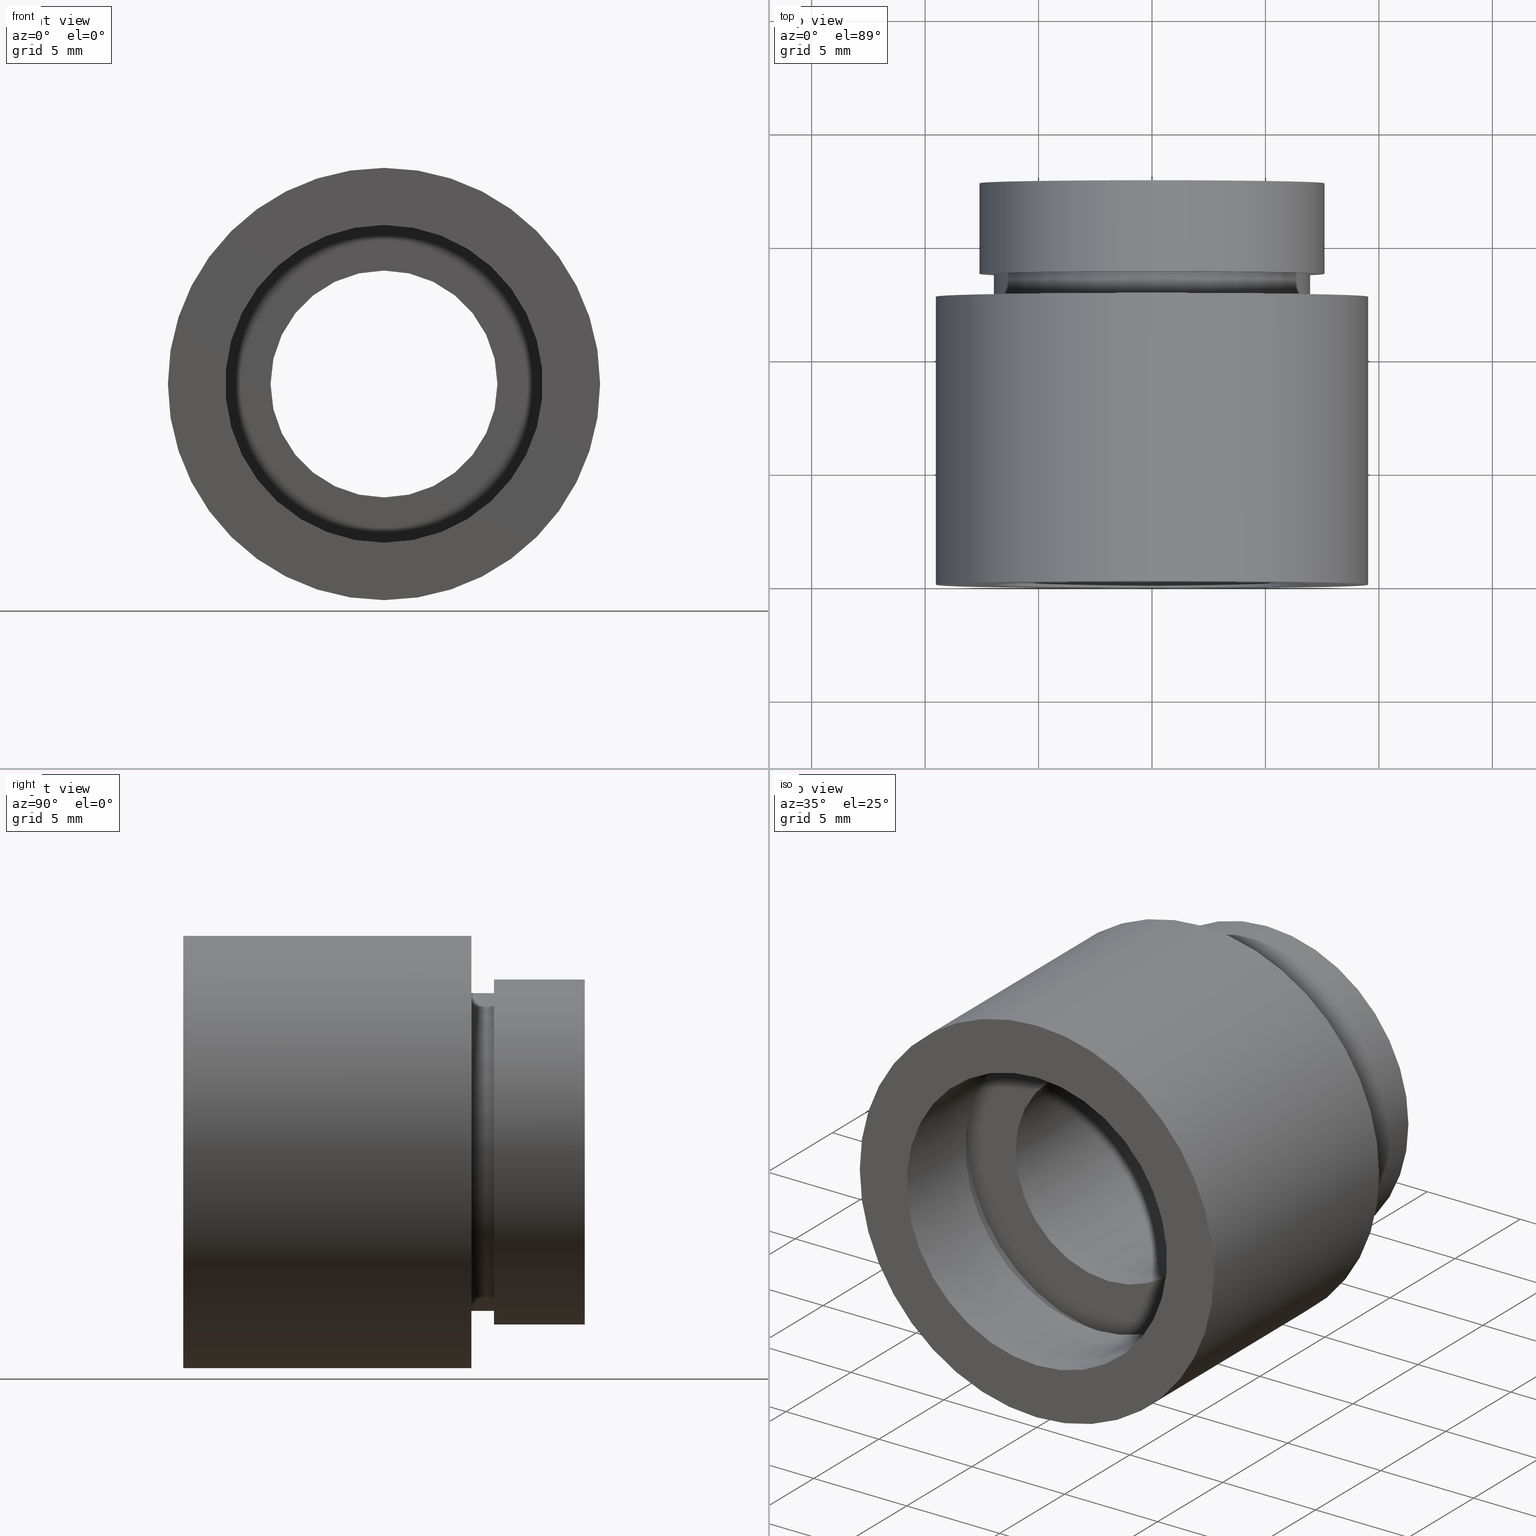
[diagram: canonical four-view strip — front | top / right | iso, engineering-drawing reading convention]
A machine part, canonical four-view strip (front | top / right | iso — engineering-drawing reading convention). The complete STEP part file that produces these views, byte-faithful:
ISO-10303-21;
HEADER;
FILE_DESCRIPTION (( 'STEP AP214' ),
    '1' );
FILE_NAME ('503092.STEP',
    '2019-09-11T07:24:43',
    ( '' ),
    ( '' ),
    'SwSTEP 2.0',
    'SolidWorks 2016',
    '' );
FILE_SCHEMA (( 'AUTOMOTIVE_DESIGN' ));
ENDSEC;

DATA;
#1 = CARTESIAN_POINT ( 'NONE',  ( 6.123233995736789000E-016, 5.499999999999976900, -5.000000000000019500 ) ) ;
#2 = FACE_OUTER_BOUND ( 'NONE', #483, .T. ) ;
#3 = ORIENTED_EDGE ( 'NONE', *, *, #262, .F. ) ;
#4 = DIRECTION ( 'NONE',  ( -0.0000000000000000000, 1.000000000000000000, -0.0000000000000000000 ) ) ;
#5 = AXIS2_PLACEMENT_3D ( 'NONE', #364, #512, #77 ) ;
#6 = PLANE ( 'NONE',  #414 ) ;
#7 = EDGE_CURVE ( 'NONE', #131, #611, #307, .T. ) ;
#8 = PRESENTATION_STYLE_ASSIGNMENT (( #311 ) ) ;
#9 = FILL_AREA_STYLE ('',( #436 ) ) ;
#10 = EDGE_LOOP ( 'NONE', ( #353, #424, #126, #561 ) ) ;
#11 =( LENGTH_UNIT ( ) NAMED_UNIT ( * ) SI_UNIT ( .MILLI., .METRE. ) );
#12 = MECHANICAL_DESIGN_GEOMETRIC_PRESENTATION_REPRESENTATION (  '', ( #594 ), #465 ) ;
#13 = UNCERTAINTY_MEASURE_WITH_UNIT (LENGTH_MEASURE( 1.000000000000000100E-005 ), #116, 'distance_accuracy_value', 'NONE');
#14 =( NAMED_UNIT ( * ) SI_UNIT ( $, .STERADIAN. ) SOLID_ANGLE_UNIT ( ) );
#15 = DIRECTION ( 'NONE',  ( -0.0000000000000000000, 1.000000000000000000, -0.0000000000000000000 ) ) ;
#16 = EDGE_CURVE ( 'NONE', #354, #180, #234, .T. ) ;
#17 = VECTOR ( 'NONE', #209, 1000.000000000000000 ) ;
#18 = ORIENTED_EDGE ( 'NONE', *, *, #261, .F. ) ;
#19 = DIRECTION ( 'NONE',  ( -0.0000000000000000000, 1.000000000000000000, -0.0000000000000000000 ) ) ;
#20 = DIRECTION ( 'NONE',  ( 0.0000000000000000000, -0.0000000000000000000, -1.000000000000000000 ) ) ;
#21 = CARTESIAN_POINT ( 'NONE',  ( 9.525000000000019900, 12.69999999999998200, 0.0000000000000000000 ) ) ;
#22 = CYLINDRICAL_SURFACE ( 'NONE', #334, 7.000000000000016900 ) ;
#23 =( GEOMETRIC_REPRESENTATION_CONTEXT ( 3 ) GLOBAL_UNCERTAINTY_ASSIGNED_CONTEXT ( ( #121 ) ) GLOBAL_UNIT_ASSIGNED_CONTEXT ( ( #44, #106, #149 ) ) REPRESENTATION_CONTEXT ( 'NONE', 'WORKASPACE' ) );
#24 = ORIENTED_EDGE ( 'NONE', *, *, #226, .T. ) ;
#25 = VERTEX_POINT ( 'NONE', #232 ) ;
#26 = DIRECTION ( 'NONE',  ( 0.0000000000000000000, 0.0000000000000000000, 1.000000000000000000 ) ) ;
#27 = EDGE_CURVE ( 'NONE', #131, #308, #257, .T. ) ;
#28 = FILL_AREA_STYLE ('',( #504 ) ) ;
#29 = CARTESIAN_POINT ( 'NONE',  ( 0.0000000000000000000, 5.499999999999976900, 0.0000000000000000000 ) ) ;
#30 = VERTEX_POINT ( 'NONE', #285 ) ;
#31 =( LENGTH_UNIT ( ) NAMED_UNIT ( * ) SI_UNIT ( .MILLI., .METRE. ) );
#32 = AXIS2_PLACEMENT_3D ( 'NONE', #84, #624, #170 ) ;
#33 = CIRCLE ( 'NONE', #156, 9.525000000000019900 ) ;
#34 = VECTOR ( 'NONE', #485, 1000.000000000000000 ) ;
#35 = DIRECTION ( 'NONE',  ( 0.0000000000000000000, 0.0000000000000000000, 1.000000000000000000 ) ) ;
#36 = EDGE_LOOP ( 'NONE', ( #127, #136, #450, #448 ) ) ;
#37 = AXIS2_PLACEMENT_3D ( 'NONE', #103, #145, #498 ) ;
#38 = ORIENTED_EDGE ( 'NONE', *, *, #7, .T. ) ;
#39 = SURFACE_SIDE_STYLE ('',( #241 ) ) ;
#40 = EDGE_LOOP ( 'NONE', ( #555, #78 ) ) ;
#41 = ORIENTED_EDGE ( 'NONE', *, *, #433, .F. ) ;
#42 = AXIS2_PLACEMENT_3D ( 'NONE', #246, #63, #20 ) ;
#43 = CARTESIAN_POINT ( 'NONE',  ( 0.0000000000000000000, 161.3761669434274500, 0.0000000000000000000 ) ) ;
#44 =( LENGTH_UNIT ( ) NAMED_UNIT ( * ) SI_UNIT ( .MILLI., .METRE. ) );
#45 = VECTOR ( 'NONE', #425, 1000.000000000000000 ) ;
#46 = CARTESIAN_POINT ( 'NONE',  ( 7.000000000000019500, -1.650046791174882700E-014, 0.0000000000000000000 ) ) ;
#47 = CYLINDRICAL_SURFACE ( 'NONE', #423, 5.000000000000019500 ) ;
#48 = VERTEX_POINT ( 'NONE', #541 ) ;
#49 = STYLED_ITEM ( 'NONE', ( #542 ), #614 ) ;
#50 = DIRECTION ( 'NONE',  ( -0.0000000000000000000, 1.000000000000000000, -0.0000000000000000000 ) ) ;
#51 = DIRECTION ( 'NONE',  ( -0.0000000000000000000, 1.000000000000000000, -0.0000000000000000000 ) ) ;
#52 = EDGE_CURVE ( 'NONE', #611, #131, #536, .T. ) ;
#53 = DIRECTION ( 'NONE',  ( -0.0000000000000000000, 1.000000000000000000, -0.0000000000000000000 ) ) ;
#54 = CIRCLE ( 'NONE', #64, 7.600000000000020100 ) ;
#55 = ORIENTED_EDGE ( 'NONE', *, *, #270, .F. ) ;
#56 = CARTESIAN_POINT ( 'NONE',  ( 0.0000000000000000000, -2.775557561562891400E-014, 0.0000000000000000000 ) ) ;
#57 = DIRECTION ( 'NONE',  ( 0.0000000000000000000, 0.0000000000000000000, 1.000000000000000000 ) ) ;
#58 = AXIS2_PLACEMENT_3D ( 'NONE', #431, #332, #229 ) ;
#59 = PRESENTATION_STYLE_ASSIGNMENT (( #474 ) ) ;
#60 = DIRECTION ( 'NONE',  ( 0.0000000000000000000, 0.0000000000000000000, 1.000000000000000000 ) ) ;
#61 = COLOUR_RGB ( '',1.000000000000000000, 1.000000000000000000, 1.000000000000000000 ) ;
#62 = ORIENTED_EDGE ( 'NONE', *, *, #588, .T. ) ;
#63 = DIRECTION ( 'NONE',  ( 0.0000000000000000000, -1.000000000000000000, 0.0000000000000000000 ) ) ;
#64 = AXIS2_PLACEMENT_3D ( 'NONE', #247, #459, #342 ) ;
#65 =( NAMED_UNIT ( * ) PLANE_ANGLE_UNIT ( ) SI_UNIT ( $, .RADIAN. ) );
#66 = DIRECTION ( 'NONE',  ( 0.0000000000000000000, 0.0000000000000000000, 1.000000000000000000 ) ) ;
#67 = SURFACE_STYLE_FILL_AREA ( #470 ) ;
#68 = AXIS2_PLACEMENT_3D ( 'NONE', #515, #318, #617 ) ;
#69 = SURFACE_STYLE_USAGE ( .BOTH. , #206 ) ;
#70 = EDGE_LOOP ( 'NONE', ( #212, #518, #110, #198 ) ) ;
#71 = UNCERTAINTY_MEASURE_WITH_UNIT (LENGTH_MEASURE( 1.000000000000000100E-005 ), #446, 'distance_accuracy_value', 'NONE');
#72 =( NAMED_UNIT ( * ) PLANE_ANGLE_UNIT ( ) SI_UNIT ( $, .RADIAN. ) );
#73 = EDGE_CURVE ( 'NONE', #399, #281, #602, .T. ) ;
#74 = FACE_OUTER_BOUND ( 'NONE', #496, .T. ) ;
#75 = FACE_OUTER_BOUND ( 'NONE', #70, .T. ) ;
#76 = ORIENTED_EDGE ( 'NONE', *, *, #16, .T. ) ;
#77 = DIRECTION ( 'NONE',  ( 0.0000000000000000000, 0.0000000000000000000, 1.000000000000000000 ) ) ;
#78 = ORIENTED_EDGE ( 'NONE', *, *, #565, .F. ) ;
#79 = PRODUCT ( '503092', '503092', '', ( #303 ) ) ;
#80 = CARTESIAN_POINT ( 'NONE',  ( 0.0000000000000000000, 161.3761669434274500, 0.0000000000000000000 ) ) ;
#81 =( GEOMETRIC_REPRESENTATION_CONTEXT ( 3 ) GLOBAL_UNCERTAINTY_ASSIGNED_CONTEXT ( ( #71 ) ) GLOBAL_UNIT_ASSIGNED_CONTEXT ( ( #446, #488, #187 ) ) REPRESENTATION_CONTEXT ( 'NONE', 'WORKASPACE' ) );
#82 = CARTESIAN_POINT ( 'NONE',  ( 0.0000000000000000000, 12.69999999999998900, 9.525000000000019900 ) ) ;
#83 = ADVANCED_FACE ( 'NONE', ( #92, #205 ), #404, .F. ) ;
#84 = CARTESIAN_POINT ( 'NONE',  ( 7.000000000000016900, 13.69999999999998000, 0.0000000000000000000 ) ) ;
#85 = EDGE_CURVE ( 'NONE', #511, #308, #54, .T. ) ;
#86 = ADVANCED_FACE ( 'NONE', ( #447, #2 ), #155, .F. ) ;
#87 = EDGE_LOOP ( 'NONE', ( #252, #190, #490, #244 ) ) ;
#88 = CARTESIAN_POINT ( 'NONE',  ( 1.166476076187856400E-015, -2.775557561562891400E-014, -9.525000000000019900 ) ) ;
#89 = SURFACE_STYLE_USAGE ( .BOTH. , #98 ) ;
#90 = CYLINDRICAL_SURFACE ( 'NONE', #335, 7.600000000000020100 ) ;
#91 = FACE_OUTER_BOUND ( 'NONE', #564, .T. ) ;
#92 = FACE_BOUND ( 'NONE', #333, .T. ) ;
#93 = ORIENTED_EDGE ( 'NONE', *, *, #588, .F. ) ;
#94 = AXIS2_PLACEMENT_3D ( 'NONE', #487, #426, #530 ) ;
#95 = DIRECTION ( 'NONE',  ( 0.0000000000000000000, 0.0000000000000000000, 1.000000000000000000 ) ) ;
#96 = EDGE_CURVE ( 'NONE', #468, #282, #378, .T. ) ;
#97 = LINE ( 'NONE', #437, #445 ) ;
#98 = SURFACE_SIDE_STYLE ('',( #577 ) ) ;
#99 = CIRCLE ( 'NONE', #5, 7.600000000000016500 ) ;
#100 = CARTESIAN_POINT ( 'NONE',  ( 0.0000000000000000000, 4.499999999999976000, 0.0000000000000000000 ) ) ;
#101 = CARTESIAN_POINT ( 'NONE',  ( 1.166476076187856400E-015, 161.3761669434274500, -9.525000000000019900 ) ) ;
#102 = ORIENTED_EDGE ( 'NONE', *, *, #374, .T. ) ;
#103 = CARTESIAN_POINT ( 'NONE',  ( 0.0000000000000000000, -2.775557561562891400E-014, 0.0000000000000000000 ) ) ;
#104 =( GEOMETRIC_REPRESENTATION_CONTEXT ( 3 ) GLOBAL_UNCERTAINTY_ASSIGNED_CONTEXT ( ( #177 ) ) GLOBAL_UNIT_ASSIGNED_CONTEXT ( ( #268, #615, #620 ) ) REPRESENTATION_CONTEXT ( 'NONE', 'WORKASPACE' ) );
#105 = DIRECTION ( 'NONE',  ( 0.0000000000000000000, 0.0000000000000000000, 1.000000000000000000 ) ) ;
#106 =( NAMED_UNIT ( * ) PLANE_ANGLE_UNIT ( ) SI_UNIT ( $, .RADIAN. ) );
#107 = EDGE_CURVE ( 'NONE', #461, #271, #460, .T. ) ;
#108 = FACE_BOUND ( 'NONE', #168, .T. ) ;
#109 = DIRECTION ( 'NONE',  ( 0.0000000000000000000, 0.0000000000000000000, 1.000000000000000000 ) ) ;
#110 = ORIENTED_EDGE ( 'NONE', *, *, #317, .F. ) ;
#111 = DIRECTION ( 'NONE',  ( -0.0000000000000000000, 1.000000000000000000, -0.0000000000000000000 ) ) ;
#112 = AXIS2_PLACEMENT_3D ( 'NONE', #455, #111, #119 ) ;
#113 = SURFACE_STYLE_USAGE ( .BOTH. , #293 ) ;
#114 = CARTESIAN_POINT ( 'NONE',  ( 0.0000000000000000000, 4.499999999999976000, 7.600000000000019200 ) ) ;
#115 = DIRECTION ( 'NONE',  ( 0.0000000000000000000, -0.0000000000000000000, -1.000000000000000000 ) ) ;
#116 =( LENGTH_UNIT ( ) NAMED_UNIT ( * ) SI_UNIT ( .MILLI., .METRE. ) );
#117 = MECHANICAL_DESIGN_GEOMETRIC_PRESENTATION_REPRESENTATION (  '', ( #452 ), #172 ) ;
#118 = ORIENTED_EDGE ( 'NONE', *, *, #365, .F. ) ;
#119 = DIRECTION ( 'NONE',  ( 0.0000000000000000000, 0.0000000000000000000, 1.000000000000000000 ) ) ;
#120 = ORIENTED_EDGE ( 'NONE', *, *, #550, .F. ) ;
#121 = UNCERTAINTY_MEASURE_WITH_UNIT (LENGTH_MEASURE( 1.000000000000000100E-005 ), #44, 'distance_accuracy_value', 'NONE');
#122 = AXIS2_PLACEMENT_3D ( 'NONE', #295, #348, #66 ) ;
#123 = DIRECTION ( 'NONE',  ( 0.0000000000000000000, 0.0000000000000000000, 1.000000000000000000 ) ) ;
#124 = DIRECTION ( 'NONE',  ( -0.0000000000000000000, 1.000000000000000000, 0.0000000000000000000 ) ) ;
#125 = CIRCLE ( 'NONE', #58, 7.600000000000016500 ) ;
#126 = ORIENTED_EDGE ( 'NONE', *, *, #73, .T. ) ;
#127 = ORIENTED_EDGE ( 'NONE', *, *, #284, .F. ) ;
#128 = STYLED_ITEM ( 'NONE', ( #319 ), #522 ) ;
#129 = ADVANCED_FACE ( 'NONE', ( #75 ), #440, .T. ) ;
#130 = CARTESIAN_POINT ( 'NONE',  ( 8.572527594031492900E-016, 161.3761669434274500, -7.000000000000016900 ) ) ;
#131 = VERTEX_POINT ( 'NONE', #114 ) ;
#132 = CARTESIAN_POINT ( 'NONE',  ( 0.0000000000000000000, 5.499999999999976900, 7.600000000000020100 ) ) ;
#133 =( LENGTH_UNIT ( ) NAMED_UNIT ( * ) SI_UNIT ( .MILLI., .METRE. ) );
#134 = CARTESIAN_POINT ( 'NONE',  ( 6.123233995736789000E-016, 17.69999999999996700, -5.000000000000019500 ) ) ;
#135 = AXIS2_PLACEMENT_3D ( 'NONE', #395, #349, #157 ) ;
#136 = ORIENTED_EDGE ( 'NONE', *, *, #249, .F. ) ;
#137 = DIRECTION ( 'NONE',  ( 0.0000000000000000000, -1.000000000000000000, 0.0000000000000000000 ) ) ;
#138 = DIRECTION ( 'NONE',  ( -0.0000000000000000000, 1.000000000000000000, -0.0000000000000000000 ) ) ;
#139 = PRESENTATION_LAYER_ASSIGNMENT (  '', '', ( #163 ) ) ;
#140 = LINE ( 'NONE', #509, #17 ) ;
#141 = ORIENTED_EDGE ( 'NONE', *, *, #471, .T. ) ;
#142 = AXIS2_PLACEMENT_3D ( 'NONE', #551, #254, #605 ) ;
#143 = CARTESIAN_POINT ( 'NONE',  ( 8.572527594031492900E-016, 12.69999999999998900, -7.000000000000016900 ) ) ;
#144 = EDGE_CURVE ( 'NONE', #330, #282, #321, .T. ) ;
#145 = DIRECTION ( 'NONE',  ( -0.0000000000000000000, 1.000000000000000000, -0.0000000000000000000 ) ) ;
#146 = CYLINDRICAL_SURFACE ( 'NONE', #202, 7.000000000000020400 ) ;
#147 = DIRECTION ( 'NONE',  ( -0.0000000000000000000, 1.000000000000000000, -0.0000000000000000000 ) ) ;
#148 = ORIENTED_EDGE ( 'NONE', *, *, #339, .F. ) ;
#149 =( NAMED_UNIT ( * ) SI_UNIT ( $, .STERADIAN. ) SOLID_ANGLE_UNIT ( ) );
#150 = CARTESIAN_POINT ( 'NONE',  ( 0.0000000000000000000, 161.3761669434274500, 0.0000000000000000000 ) ) ;
#151 = AXIS2_PLACEMENT_3D ( 'NONE', #442, #291, #192 ) ;
#152 = VERTEX_POINT ( 'NONE', #499 ) ;
#153 = EDGE_CURVE ( 'NONE', #281, #399, #360, .T. ) ;
#154 = DIRECTION ( 'NONE',  ( -0.0000000000000000000, 1.000000000000000000, -0.0000000000000000000 ) ) ;
#155 = PLANE ( 'NONE',  #42 ) ;
#156 = AXIS2_PLACEMENT_3D ( 'NONE', #242, #51, #105 ) ;
#157 = DIRECTION ( 'NONE',  ( 0.0000000000000000000, 0.0000000000000000000, 1.000000000000000000 ) ) ;
#158 = PRESENTATION_STYLE_ASSIGNMENT (( #69 ) ) ;
#159 = ORIENTED_EDGE ( 'NONE', *, *, #238, .T. ) ;
#160 = EDGE_LOOP ( 'NONE', ( #415, #573 ) ) ;
#161 =( NAMED_UNIT ( * ) SI_UNIT ( $, .STERADIAN. ) SOLID_ANGLE_UNIT ( ) );
#162 = ORIENTED_EDGE ( 'NONE', *, *, #7, .F. ) ;
#163 = STYLED_ITEM ( 'NONE', ( #8 ), #171 ) ;
#164 = DIRECTION ( 'NONE',  ( -0.0000000000000000000, 1.000000000000000000, -0.0000000000000000000 ) ) ;
#165 = ADVANCED_FACE ( 'NONE', ( #495 ), #501, .T. ) ;
#166 = MECHANICAL_DESIGN_GEOMETRIC_PRESENTATION_REPRESENTATION (  '', ( #163 ), #230 ) ;
#167 = SURFACE_STYLE_FILL_AREA ( #312 ) ;
#168 = EDGE_LOOP ( 'NONE', ( #548, #76 ) ) ;
#169 = ORIENTED_EDGE ( 'NONE', *, *, #226, .F. ) ;
#170 = DIRECTION ( 'NONE',  ( 0.0000000000000000000, 0.0000000000000000000, 1.000000000000000000 ) ) ;
#171 = ADVANCED_FACE ( 'NONE', ( #535 ), #233, .F. ) ;
#172 =( GEOMETRIC_REPRESENTATION_CONTEXT ( 3 ) GLOBAL_UNCERTAINTY_ASSIGNED_CONTEXT ( ( #13 ) ) GLOBAL_UNIT_ASSIGNED_CONTEXT ( ( #116, #451, #253 ) ) REPRESENTATION_CONTEXT ( 'NONE', 'WORKASPACE' ) );
#173 = DIRECTION ( 'NONE',  ( -0.0000000000000000000, 1.000000000000000000, -0.0000000000000000000 ) ) ;
#174 = DIRECTION ( 'NONE',  ( 0.0000000000000000000, 0.0000000000000000000, 1.000000000000000000 ) ) ;
#175 = AXIS2_PLACEMENT_3D ( 'NONE', #549, #600, #57 ) ;
#176 = CIRCLE ( 'NONE', #142, 9.525000000000019900 ) ;
#177 = UNCERTAINTY_MEASURE_WITH_UNIT (LENGTH_MEASURE( 1.000000000000000100E-005 ), #268, 'distance_accuracy_value', 'NONE');
#178 = ORIENTED_EDGE ( 'NONE', *, *, #623, .F. ) ;
#179 = SURFACE_STYLE_USAGE ( .BOTH. , #263 ) ;
#180 = VERTEX_POINT ( 'NONE', #559 ) ;
#181 = CARTESIAN_POINT ( 'NONE',  ( 0.0000000000000000000, 161.3761669434274500, 0.0000000000000000000 ) ) ;
#182 = LINE ( 'NONE', #273, #618 ) ;
#183 =( GEOMETRIC_REPRESENTATION_CONTEXT ( 3 ) GLOBAL_UNCERTAINTY_ASSIGNED_CONTEXT ( ( #337 ) ) GLOBAL_UNIT_ASSIGNED_CONTEXT ( ( #133, #478, #574 ) ) REPRESENTATION_CONTEXT ( 'NONE', 'WORKASPACE' ) );
#184 = EDGE_LOOP ( 'NONE', ( #120, #141, #435, #503 ) ) ;
#185 = CARTESIAN_POINT ( 'NONE',  ( 7.600000000000016500, 17.69999999999997800, 0.0000000000000000000 ) ) ;
#186 = AXIS2_PLACEMENT_3D ( 'NONE', #304, #301, #26 ) ;
#187 =( NAMED_UNIT ( * ) SI_UNIT ( $, .STERADIAN. ) SOLID_ANGLE_UNIT ( ) );
#188 = FACE_OUTER_BOUND ( 'NONE', #331, .T. ) ;
#189 = COLOUR_RGB ( '',1.000000000000000000, 1.000000000000000000, 1.000000000000000000 ) ;
#190 = ORIENTED_EDGE ( 'NONE', *, *, #207, .T. ) ;
#191 = STYLED_ITEM ( 'NONE', ( #59 ), #372 ) ;
#192 = DIRECTION ( 'NONE',  ( 0.0000000000000000000, 0.0000000000000000000, 1.000000000000000000 ) ) ;
#193 = CARTESIAN_POINT ( 'NONE',  ( 0.0000000000000000000, 161.3761669434274500, 0.0000000000000000000 ) ) ;
#194 =( GEOMETRIC_REPRESENTATION_CONTEXT ( 3 ) GLOBAL_UNCERTAINTY_ASSIGNED_CONTEXT ( ( #582 ) ) GLOBAL_UNIT_ASSIGNED_CONTEXT ( ( #245, #65, #402 ) ) REPRESENTATION_CONTEXT ( 'NONE', 'WORKASPACE' ) );
#195 = FACE_OUTER_BOUND ( 'NONE', #87, .T. ) ;
#196 = DIRECTION ( 'NONE',  ( 0.0000000000000000000, 0.0000000000000000000, 1.000000000000000000 ) ) ;
#197 = ORIENTED_EDGE ( 'NONE', *, *, #456, .F. ) ;
#198 = ORIENTED_EDGE ( 'NONE', *, *, #238, .F. ) ;
#199 = AXIS2_PLACEMENT_3D ( 'NONE', #100, #388, #385 ) ;
#200 = ORIENTED_EDGE ( 'NONE', *, *, #27, .F. ) ;
#201 = ORIENTED_EDGE ( 'NONE', *, *, #52, .F. ) ;
#202 = AXIS2_PLACEMENT_3D ( 'NONE', #576, #481, #235 ) ;
#203 = FACE_BOUND ( 'NONE', #622, .T. ) ;
#204 = DIRECTION ( 'NONE',  ( 1.000000000000000000, 0.0000000000000000000, 0.0000000000000000000 ) ) ;
#205 = FACE_OUTER_BOUND ( 'NONE', #596, .T. ) ;
#206 = SURFACE_SIDE_STYLE ('',( #67 ) ) ;
#207 = EDGE_CURVE ( 'NONE', #354, #368, #377, .T. ) ;
#208 = CARTESIAN_POINT ( 'NONE',  ( 0.0000000000000000000, 161.3761669434274500, 0.0000000000000000000 ) ) ;
#209 = DIRECTION ( 'NONE',  ( -0.0000000000000000000, 1.000000000000000000, -0.0000000000000000000 ) ) ;
#210 = PRESENTATION_STYLE_ASSIGNMENT (( #400 ) ) ;
#211 = CARTESIAN_POINT ( 'NONE',  ( 0.0000000000000000000, 13.69999999999999000, 0.0000000000000000000 ) ) ;
#212 = ORIENTED_EDGE ( 'NONE', *, *, #537, .T. ) ;
#213 = ADVANCED_BREP_SHAPE_REPRESENTATION ( '503092', ( #310, #369 ), #81 ) ;
#214 = DIRECTION ( 'NONE',  ( 0.0000000000000000000, 0.0000000000000000000, 1.000000000000000000 ) ) ;
#215 = ADVANCED_FACE ( 'NONE', ( #279 ), #22, .T. ) ;
#216 = MECHANICAL_DESIGN_GEOMETRIC_PRESENTATION_REPRESENTATION (  '', ( #191 ), #183 ) ;
#217 = FILL_AREA_STYLE_COLOUR ( '', #430 ) ;
#218 = SHAPE_DEFINITION_REPRESENTATION ( #267, #213 ) ;
#219 = AXIS2_PLACEMENT_3D ( 'NONE', #553, #466, #355 ) ;
#220 = CARTESIAN_POINT ( 'NONE',  ( 0.0000000000000000000, 161.3761669434274500, 7.000000000000020400 ) ) ;
#221 = ORIENTED_EDGE ( 'NONE', *, *, #153, .F. ) ;
#222 = FILL_AREA_STYLE ('',( #217 ) ) ;
#223 = AXIS2_PLACEMENT_3D ( 'NONE', #491, #237, #492 ) ;
#224 = CARTESIAN_POINT ( 'NONE',  ( 8.572527594031492900E-016, 13.69999999999999000, -7.000000000000016900 ) ) ;
#225 = CIRCLE ( 'NONE', #223, 7.600000000000016500 ) ;
#226 = EDGE_CURVE ( 'NONE', #300, #30, #289, .T. ) ;
#227 = VECTOR ( 'NONE', #283, 1000.000000000000000 ) ;
#228 = EDGE_LOOP ( 'NONE', ( #197, #162, #393, #401 ) ) ;
#229 = DIRECTION ( 'NONE',  ( 0.0000000000000000000, 0.0000000000000000000, 1.000000000000000000 ) ) ;
#230 =( GEOMETRIC_REPRESENTATION_CONTEXT ( 3 ) GLOBAL_UNCERTAINTY_ASSIGNED_CONTEXT ( ( #479 ) ) GLOBAL_UNIT_ASSIGNED_CONTEXT ( ( #31, #607, #363 ) ) REPRESENTATION_CONTEXT ( 'NONE', 'WORKASPACE' ) );
#231 = DIRECTION ( 'NONE',  ( 0.0000000000000000000, 0.0000000000000000000, 1.000000000000000000 ) ) ;
#232 = CARTESIAN_POINT ( 'NONE',  ( 0.0000000000000000000, 13.69999999999999000, 7.600000000000016500 ) ) ;
#233 = CYLINDRICAL_SURFACE ( 'NONE', #219, 5.000000000000019500 ) ;
#234 = CIRCLE ( 'NONE', #37, 7.000000000000019500 ) ;
#235 = DIRECTION ( 'NONE',  ( 0.0000000000000000000, 0.0000000000000000000, 1.000000000000000000 ) ) ;
#236 = ORIENTED_EDGE ( 'NONE', *, *, #96, .T. ) ;
#237 = DIRECTION ( 'NONE',  ( -0.0000000000000000000, 1.000000000000000000, -0.0000000000000000000 ) ) ;
#238 = EDGE_CURVE ( 'NONE', #152, #30, #140, .T. ) ;
#239 = CARTESIAN_POINT ( 'NONE',  ( 9.307315673519903200E-016, 161.3761669434274500, -7.600000000000016500 ) ) ;
#240 = SURFACE_STYLE_FILL_AREA ( #28 ) ;
#241 = SURFACE_STYLE_FILL_AREA ( #323 ) ;
#242 = CARTESIAN_POINT ( 'NONE',  ( 0.0000000000000000000, 12.69999999999998900, 0.0000000000000000000 ) ) ;
#243 = SURFACE_STYLE_FILL_AREA ( #352 ) ;
#244 = ORIENTED_EDGE ( 'NONE', *, *, #397, .F. ) ;
#245 =( LENGTH_UNIT ( ) NAMED_UNIT ( * ) SI_UNIT ( .MILLI., .METRE. ) );
#246 = CARTESIAN_POINT ( 'NONE',  ( 7.000000000000020400, 4.499999999999983100, 0.0000000000000000000 ) ) ;
#247 = CARTESIAN_POINT ( 'NONE',  ( 0.0000000000000000000, 5.499999999999976900, 0.0000000000000000000 ) ) ;
#248 = LINE ( 'NONE', #239, #609 ) ;
#249 = EDGE_CURVE ( 'NONE', #271, #461, #391, .T. ) ;
#250 = APPLICATION_PROTOCOL_DEFINITION ( 'draft international standard', 'automotive_design', 1998, #298 ) ;
#251 = DIRECTION ( 'NONE',  ( 0.0000000000000000000, -1.000000000000000000, 0.0000000000000000000 ) ) ;
#252 = ORIENTED_EDGE ( 'NONE', *, *, #16, .F. ) ;
#253 =( NAMED_UNIT ( * ) SI_UNIT ( $, .STERADIAN. ) SOLID_ANGLE_UNIT ( ) );
#254 = DIRECTION ( 'NONE',  ( -0.0000000000000000000, 1.000000000000000000, -0.0000000000000000000 ) ) ;
#255 = AXIS2_PLACEMENT_3D ( 'NONE', #56, #19, #533 ) ;
#256 = DIRECTION ( 'NONE',  ( -0.0000000000000000000, 1.000000000000000000, -0.0000000000000000000 ) ) ;
#257 = LINE ( 'NONE', #438, #510 ) ;
#258 = DIRECTION ( 'NONE',  ( 0.0000000000000000000, 0.0000000000000000000, 1.000000000000000000 ) ) ;
#259 = ADVANCED_FACE ( 'NONE', ( #589, #601 ), #408, .F. ) ;
#260 = ORIENTED_EDGE ( 'NONE', *, *, #489, .F. ) ;
#261 = EDGE_CURVE ( 'NONE', #25, #48, #99, .T. ) ;
#262 = EDGE_CURVE ( 'NONE', #330, #272, #176, .T. ) ;
#263 = SURFACE_SIDE_STYLE ('',( #299 ) ) ;
#264 = FACE_OUTER_BOUND ( 'NONE', #370, .T. ) ;
#265 = EDGE_LOOP ( 'NONE', ( #118, #343, #159, #169 ) ) ;
#266 = AXIS2_PLACEMENT_3D ( 'NONE', #357, #124, #123 ) ;
#267 = PRODUCT_DEFINITION_SHAPE ( 'NONE', 'NONE',  #532 ) ;
#268 =( LENGTH_UNIT ( ) NAMED_UNIT ( * ) SI_UNIT ( .MILLI., .METRE. ) );
#269 = ADVANCED_FACE ( 'NONE', ( #524 ), #47, .F. ) ;
#270 = EDGE_CURVE ( 'NONE', #308, #511, #313, .T. ) ;
#271 = VERTEX_POINT ( 'NONE', #373 ) ;
#272 = VERTEX_POINT ( 'NONE', #88 ) ;
#273 = CARTESIAN_POINT ( 'NONE',  ( 9.307315673519909100E-016, 161.3761669434274500, -7.600000000000020100 ) ) ;
#274 = DIRECTION ( 'NONE',  ( 0.0000000000000000000, 0.0000000000000000000, 1.000000000000000000 ) ) ;
#275 = DIRECTION ( 'NONE',  ( 0.0000000000000000000, 0.0000000000000000000, 1.000000000000000000 ) ) ;
#276 = FACE_OUTER_BOUND ( 'NONE', #228, .T. ) ;
#277 = AXIS2_PLACEMENT_3D ( 'NONE', #531, #340, #109 ) ;
#278 = LINE ( 'NONE', #220, #34 ) ;
#279 = FACE_OUTER_BOUND ( 'NONE', #265, .T. ) ;
#280 = CARTESIAN_POINT ( 'NONE',  ( 0.0000000000000000000, 161.3761669434274500, 5.000000000000019500 ) ) ;
#281 = VERTEX_POINT ( 'NONE', #519 ) ;
#282 = VERTEX_POINT ( 'NONE', #82 ) ;
#283 = DIRECTION ( 'NONE',  ( -0.0000000000000000000, 1.000000000000000000, -0.0000000000000000000 ) ) ;
#284 = EDGE_CURVE ( 'NONE', #461, #399, #619, .T. ) ;
#285 = CARTESIAN_POINT ( 'NONE',  ( 0.0000000000000000000, 13.69999999999999000, 7.000000000000016900 ) ) ;
#286 = CARTESIAN_POINT ( 'NONE',  ( 0.0000000000000000000, 161.3761669434274500, 0.0000000000000000000 ) ) ;
#287 = COLOUR_RGB ( '',1.000000000000000000, 1.000000000000000000, 1.000000000000000000 ) ;
#288 = CARTESIAN_POINT ( 'NONE',  ( 0.0000000000000000000, 0.0000000000000000000, 0.0000000000000000000 ) ) ;
#289 = CIRCLE ( 'NONE', #387, 7.000000000000016900 ) ;
#290 = ORIENTED_EDGE ( 'NONE', *, *, #500, .T. ) ;
#291 = DIRECTION ( 'NONE',  ( -0.0000000000000000000, 1.000000000000000000, -0.0000000000000000000 ) ) ;
#292 = ORIENTED_EDGE ( 'NONE', *, *, #489, .T. ) ;
#293 = SURFACE_SIDE_STYLE ('',( #558 ) ) ;
#294 = AXIS2_PLACEMENT_3D ( 'NONE', #417, #562, #174 ) ;
#295 = CARTESIAN_POINT ( 'NONE',  ( 0.0000000000000000000, 4.499999999999976000, 0.0000000000000000000 ) ) ;
#296 = DIRECTION ( 'NONE',  ( -0.0000000000000000000, 1.000000000000000000, -0.0000000000000000000 ) ) ;
#297 = AXIS2_PLACEMENT_3D ( 'NONE', #29, #164, #258 ) ;
#298 = APPLICATION_CONTEXT ( 'automotive_design' ) ;
#299 = SURFACE_STYLE_FILL_AREA ( #222 ) ;
#300 = VERTEX_POINT ( 'NONE', #224 ) ;
#301 = DIRECTION ( 'NONE',  ( -0.0000000000000000000, 1.000000000000000000, -0.0000000000000000000 ) ) ;
#302 = ORIENTED_EDGE ( 'NONE', *, *, #433, .T. ) ;
#303 = PRODUCT_CONTEXT ( 'NONE', #454, 'mechanical' ) ;
#304 = CARTESIAN_POINT ( 'NONE',  ( 0.0000000000000000000, 17.69999999999996700, 0.0000000000000000000 ) ) ;
#305 = PRESENTATION_LAYER_ASSIGNMENT (  '', '', ( #594 ) ) ;
#306 = CYLINDRICAL_SURFACE ( 'NONE', #486, 9.525000000000019900 ) ;
#307 = CIRCLE ( 'NONE', #199, 7.600000000000019200 ) ;
#308 = VERTEX_POINT ( 'NONE', #132 ) ;
#309 = DIRECTION ( 'NONE',  ( -0.0000000000000000000, 1.000000000000000000, -0.0000000000000000000 ) ) ;
#310 = MANIFOLD_SOLID_BREP ( '��ת1', #469 ) ;
#311 = SURFACE_STYLE_USAGE ( .BOTH. , #406 ) ;
#312 = FILL_AREA_STYLE ('',( #513 ) ) ;
#313 = CIRCLE ( 'NONE', #68, 7.600000000000020100 ) ;
#314 = EDGE_LOOP ( 'NONE', ( #3, #467 ) ) ;
#315 = PRESENTATION_LAYER_ASSIGNMENT (  '', '', ( #49 ) ) ;
#316 = CARTESIAN_POINT ( 'NONE',  ( 9.307315673519903200E-016, 17.69999999999996700, -7.600000000000016500 ) ) ;
#317 = EDGE_CURVE ( 'NONE', #30, #300, #560, .T. ) ;
#318 = DIRECTION ( 'NONE',  ( -0.0000000000000000000, 1.000000000000000000, -0.0000000000000000000 ) ) ;
#319 = PRESENTATION_STYLE_ASSIGNMENT (( #89 ) ) ;
#320 = ADVANCED_FACE ( 'NONE', ( #91, #398 ), #366, .F. ) ;
#321 = LINE ( 'NONE', #453, #329 ) ;
#322 = PRODUCT_DEFINITION_CONTEXT ( 'detailed design', #298, 'design' ) ;
#323 = FILL_AREA_STYLE ('',( #521 ) ) ;
#324 = EDGE_LOOP ( 'NONE', ( #201, #612, #482, #200 ) ) ;
#325 = CARTESIAN_POINT ( 'NONE',  ( 8.572527594031496900E-016, 4.499999999999976000, -7.000000000000020400 ) ) ;
#326 = CIRCLE ( 'NONE', #294, 7.000000000000016900 ) ;
#327 = CARTESIAN_POINT ( 'NONE',  ( 0.0000000000000000000, 4.499999999999976000, 7.000000000000020400 ) ) ;
#328 = UNCERTAINTY_MEASURE_WITH_UNIT (LENGTH_MEASURE( 1.000000000000000100E-005 ), #462, 'distance_accuracy_value', 'NONE');
#329 = VECTOR ( 'NONE', #154, 1000.000000000000000 ) ;
#330 = VERTEX_POINT ( 'NONE', #418 ) ;
#331 = EDGE_LOOP ( 'NONE', ( #62, #290 ) ) ;
#332 = DIRECTION ( 'NONE',  ( -0.0000000000000000000, 1.000000000000000000, -0.0000000000000000000 ) ) ;
#333 = EDGE_LOOP ( 'NONE', ( #409, #148 ) ) ;
#334 = AXIS2_PLACEMENT_3D ( 'NONE', #358, #556, #214 ) ;
#335 = AXIS2_PLACEMENT_3D ( 'NONE', #193, #341, #338 ) ;
#336 = CYLINDRICAL_SURFACE ( 'NONE', #616, 9.525000000000019900 ) ;
#337 = UNCERTAINTY_MEASURE_WITH_UNIT (LENGTH_MEASURE( 1.000000000000000100E-005 ), #133, 'distance_accuracy_value', 'NONE');
#338 = DIRECTION ( 'NONE',  ( 0.0000000000000000000, 0.0000000000000000000, 1.000000000000000000 ) ) ;
#339 = EDGE_CURVE ( 'NONE', #516, #152, #326, .T. ) ;
#340 = DIRECTION ( 'NONE',  ( -0.0000000000000000000, 1.000000000000000000, -0.0000000000000000000 ) ) ;
#341 = DIRECTION ( 'NONE',  ( -0.0000000000000000000, 1.000000000000000000, -0.0000000000000000000 ) ) ;
#342 = DIRECTION ( 'NONE',  ( 0.0000000000000000000, 0.0000000000000000000, 1.000000000000000000 ) ) ;
#343 = ORIENTED_EDGE ( 'NONE', *, *, #339, .T. ) ;
#344 = DIRECTION ( 'NONE',  ( -0.0000000000000000000, 1.000000000000000000, -0.0000000000000000000 ) ) ;
#345 = ORIENTED_EDGE ( 'NONE', *, *, #52, .T. ) ;
#346 = CARTESIAN_POINT ( 'NONE',  ( 0.0000000000000000000, 5.499999999999976900, 0.0000000000000000000 ) ) ;
#347 = MECHANICAL_DESIGN_GEOMETRIC_PRESENTATION_REPRESENTATION (  '', ( #49 ), #382 ) ;
#348 = DIRECTION ( 'NONE',  ( -0.0000000000000000000, 1.000000000000000000, -0.0000000000000000000 ) ) ;
#349 = DIRECTION ( 'NONE',  ( -0.0000000000000000000, 1.000000000000000000, -0.0000000000000000000 ) ) ;
#350 = AXIS2_PLACEMENT_3D ( 'NONE', #346, #444, #506 ) ;
#351 = SURFACE_SIDE_STYLE ('',( #240 ) ) ;
#352 = FILL_AREA_STYLE ('',( #449 ) ) ;
#353 = ORIENTED_EDGE ( 'NONE', *, *, #107, .F. ) ;
#354 = VERTEX_POINT ( 'NONE', #567 ) ;
#355 = DIRECTION ( 'NONE',  ( 0.0000000000000000000, 0.0000000000000000000, 1.000000000000000000 ) ) ;
#356 = PRODUCT_DEFINITION_FORMATION_WITH_SPECIFIED_SOURCE ( '�κ�', '', #79, .NOT_KNOWN. ) ;
#357 = CARTESIAN_POINT ( 'NONE',  ( 7.600000000000020100, 5.499999999999984000, 0.0000000000000000000 ) ) ;
#358 = CARTESIAN_POINT ( 'NONE',  ( 0.0000000000000000000, 161.3761669434274500, 0.0000000000000000000 ) ) ;
#359 = CIRCLE ( 'NONE', #94, 7.600000000000016500 ) ;
#360 = CIRCLE ( 'NONE', #186, 5.000000000000019500 ) ;
#361 = AXIS2_PLACEMENT_3D ( 'NONE', #371, #571, #566 ) ;
#362 = VERTEX_POINT ( 'NONE', #316 ) ;
#363 =( NAMED_UNIT ( * ) SI_UNIT ( $, .STERADIAN. ) SOLID_ANGLE_UNIT ( ) );
#364 = CARTESIAN_POINT ( 'NONE',  ( 0.0000000000000000000, 13.69999999999999000, 0.0000000000000000000 ) ) ;
#365 = EDGE_CURVE ( 'NONE', #516, #300, #544, .T. ) ;
#366 = PLANE ( 'NONE',  #32 ) ;
#367 = CIRCLE ( 'NONE', #604, 9.525000000000019900 ) ;
#368 = VERTEX_POINT ( 'NONE', #325 ) ;
#369 = AXIS2_PLACEMENT_3D ( 'NONE', #288, #405, #204 ) ;
#370 = EDGE_LOOP ( 'NONE', ( #539, #410, #563, #102 ) ) ;
#371 = CARTESIAN_POINT ( 'NONE',  ( 0.0000000000000000000, 13.69999999999999000, 0.0000000000000000000 ) ) ;
#372 = ADVANCED_FACE ( 'NONE', ( #264 ), #599, .F. ) ;
#373 = CARTESIAN_POINT ( 'NONE',  ( 0.0000000000000000000, 5.499999999999976900, 5.000000000000019500 ) ) ;
#374 = EDGE_CURVE ( 'NONE', #477, #368, #457, .T. ) ;
#375 = DIRECTION ( 'NONE',  ( 0.0000000000000000000, 0.0000000000000000000, 1.000000000000000000 ) ) ;
#376 = CYLINDRICAL_SURFACE ( 'NONE', #547, 7.600000000000020100 ) ;
#377 = LINE ( 'NONE', #411, #419 ) ;
#378 = CIRCLE ( 'NONE', #112, 9.525000000000019900 ) ;
#379 = CARTESIAN_POINT ( 'NONE',  ( 9.307315673519909100E-016, 5.499999999999976900, -7.600000000000020100 ) ) ;
#380 = EDGE_LOOP ( 'NONE', ( #178, #292, #302, #538 ) ) ;
#381 = DIRECTION ( 'NONE',  ( -0.0000000000000000000, 1.000000000000000000, 0.0000000000000000000 ) ) ;
#382 =( GEOMETRIC_REPRESENTATION_CONTEXT ( 3 ) GLOBAL_UNCERTAINTY_ASSIGNED_CONTEXT ( ( #458 ) ) GLOBAL_UNIT_ASSIGNED_CONTEXT ( ( #11, #392, #14 ) ) REPRESENTATION_CONTEXT ( 'NONE', 'WORKASPACE' ) );
#383 = FACE_OUTER_BOUND ( 'NONE', #184, .T. ) ;
#384 = CARTESIAN_POINT ( 'NONE',  ( 1.166476076187856400E-015, 12.69999999999998900, -9.525000000000019900 ) ) ;
#385 = DIRECTION ( 'NONE',  ( 0.0000000000000000000, 0.0000000000000000000, 1.000000000000000000 ) ) ;
#386 = DIRECTION ( 'NONE',  ( -0.0000000000000000000, 1.000000000000000000, -0.0000000000000000000 ) ) ;
#387 = AXIS2_PLACEMENT_3D ( 'NONE', #211, #256, #613 ) ;
#388 = DIRECTION ( 'NONE',  ( -0.0000000000000000000, 1.000000000000000000, -0.0000000000000000000 ) ) ;
#389 = PRODUCT_RELATED_PRODUCT_CATEGORY ( 'part', '', ( #79 ) ) ;
#390 = COLOUR_RGB ( '',1.000000000000000000, 1.000000000000000000, 1.000000000000000000 ) ;
#391 = CIRCLE ( 'NONE', #297, 5.000000000000019500 ) ;
#392 =( NAMED_UNIT ( * ) PLANE_ANGLE_UNIT ( ) SI_UNIT ( $, .RADIAN. ) );
#393 = ORIENTED_EDGE ( 'NONE', *, *, #27, .T. ) ;
#394 = PRESENTATION_LAYER_ASSIGNMENT (  '', '', ( #191 ) ) ;
#395 = CARTESIAN_POINT ( 'NONE',  ( 0.0000000000000000000, 161.3761669434274500, 0.0000000000000000000 ) ) ;
#396 = FACE_OUTER_BOUND ( 'NONE', #324, .T. ) ;
#397 = EDGE_CURVE ( 'NONE', #180, #477, #278, .T. ) ;
#398 = FACE_BOUND ( 'NONE', #621, .T. ) ;
#399 = VERTEX_POINT ( 'NONE', #134 ) ;
#400 = SURFACE_STYLE_USAGE ( .BOTH. , #351 ) ;
#401 = ORIENTED_EDGE ( 'NONE', *, *, #270, .T. ) ;
#402 =( NAMED_UNIT ( * ) SI_UNIT ( $, .STERADIAN. ) SOLID_ANGLE_UNIT ( ) );
#403 = AXIS2_PLACEMENT_3D ( 'NONE', #80, #476, #375 ) ;
#404 = PLANE ( 'NONE',  #608 ) ;
#405 = DIRECTION ( 'NONE',  ( 0.0000000000000000000, 0.0000000000000000000, 1.000000000000000000 ) ) ;
#406 = SURFACE_SIDE_STYLE ('',( #167 ) ) ;
#407 = STYLED_ITEM ( 'NONE', ( #572 ), #165 ) ;
#408 = PLANE ( 'NONE',  #266 ) ;
#409 = ORIENTED_EDGE ( 'NONE', *, *, #537, .F. ) ;
#410 = ORIENTED_EDGE ( 'NONE', *, *, #597, .F. ) ;
#411 = CARTESIAN_POINT ( 'NONE',  ( 8.572527594031496900E-016, 161.3761669434274500, -7.000000000000020400 ) ) ;
#412 = LINE ( 'NONE', #101, #429 ) ;
#413 = VECTOR ( 'NONE', #173, 1000.000000000000000 ) ;
#414 = AXIS2_PLACEMENT_3D ( 'NONE', #185, #137, #527 ) ;
#415 = ORIENTED_EDGE ( 'NONE', *, *, #249, .T. ) ;
#416 = ADVANCED_FACE ( 'NONE', ( #383 ), #306, .T. ) ;
#417 = CARTESIAN_POINT ( 'NONE',  ( 0.0000000000000000000, 12.69999999999998900, 0.0000000000000000000 ) ) ;
#418 = CARTESIAN_POINT ( 'NONE',  ( 0.0000000000000000000, -2.775557561562891400E-014, 9.525000000000019900 ) ) ;
#419 = VECTOR ( 'NONE', #507, 1000.000000000000000 ) ;
#420 = ADVANCED_FACE ( 'NONE', ( #74 ), #336, .T. ) ;
#421 = ORIENTED_EDGE ( 'NONE', *, *, #261, .T. ) ;
#422 = ORIENTED_EDGE ( 'NONE', *, *, #528, .T. ) ;
#423 = AXIS2_PLACEMENT_3D ( 'NONE', #208, #309, #35 ) ;
#424 = ORIENTED_EDGE ( 'NONE', *, *, #284, .T. ) ;
#425 = DIRECTION ( 'NONE',  ( -0.0000000000000000000, 1.000000000000000000, -0.0000000000000000000 ) ) ;
#426 = DIRECTION ( 'NONE',  ( -0.0000000000000000000, 1.000000000000000000, -0.0000000000000000000 ) ) ;
#427 = AXIS2_PLACEMENT_3D ( 'NONE', #46, #381, #95 ) ;
#428 = CARTESIAN_POINT ( 'NONE',  ( 0.0000000000000000000, 4.499999999999976000, 0.0000000000000000000 ) ) ;
#429 = VECTOR ( 'NONE', #147, 1000.000000000000000 ) ;
#430 = COLOUR_RGB ( '',1.000000000000000000, 1.000000000000000000, 1.000000000000000000 ) ;
#431 = CARTESIAN_POINT ( 'NONE',  ( 0.0000000000000000000, 13.69999999999999000, 0.0000000000000000000 ) ) ;
#432 = ORIENTED_EDGE ( 'NONE', *, *, #262, .T. ) ;
#433 = EDGE_CURVE ( 'NONE', #25, #580, #97, .T. ) ;
#434 = ORIENTED_EDGE ( 'NONE', *, *, #528, .F. ) ;
#435 = ORIENTED_EDGE ( 'NONE', *, *, #144, .T. ) ;
#436 = FILL_AREA_STYLE_COLOUR ( '', #610 ) ;
#437 = CARTESIAN_POINT ( 'NONE',  ( 0.0000000000000000000, 161.3761669434274500, 7.600000000000016500 ) ) ;
#438 = CARTESIAN_POINT ( 'NONE',  ( 0.0000000000000000000, 161.3761669434274500, 7.600000000000020100 ) ) ;
#439 = AXIS2_PLACEMENT_3D ( 'NONE', #428, #138, #274 ) ;
#440 = CYLINDRICAL_SURFACE ( 'NONE', #508, 7.000000000000016900 ) ;
#441 = PRESENTATION_LAYER_ASSIGNMENT (  '', '', ( #407 ) ) ;
#442 = CARTESIAN_POINT ( 'NONE',  ( 0.0000000000000000000, 12.69999999999998900, 0.0000000000000000000 ) ) ;
#443 = FILL_AREA_STYLE_COLOUR ( '', #390 ) ;
#444 = DIRECTION ( 'NONE',  ( -0.0000000000000000000, 1.000000000000000000, -0.0000000000000000000 ) ) ;
#445 = VECTOR ( 'NONE', #50, 1000.000000000000000 ) ;
#446 =( LENGTH_UNIT ( ) NAMED_UNIT ( * ) SI_UNIT ( .MILLI., .METRE. ) );
#447 = FACE_BOUND ( 'NONE', #40, .T. ) ;
#448 = ORIENTED_EDGE ( 'NONE', *, *, #153, .T. ) ;
#449 = FILL_AREA_STYLE_COLOUR ( '', #578 ) ;
#450 = ORIENTED_EDGE ( 'NONE', *, *, #520, .T. ) ;
#451 =( NAMED_UNIT ( * ) PLANE_ANGLE_UNIT ( ) SI_UNIT ( $, .RADIAN. ) );
#452 = STYLED_ITEM ( 'NONE', ( #210 ), #213 ) ;
#453 = CARTESIAN_POINT ( 'NONE',  ( 0.0000000000000000000, 161.3761669434274500, 9.525000000000019900 ) ) ;
#454 = APPLICATION_CONTEXT ( 'automotive_design' ) ;
#455 = CARTESIAN_POINT ( 'NONE',  ( 0.0000000000000000000, 12.69999999999998900, 0.0000000000000000000 ) ) ;
#456 = EDGE_CURVE ( 'NONE', #611, #511, #182, .T. ) ;
#457 = CIRCLE ( 'NONE', #439, 7.000000000000020400 ) ;
#458 = UNCERTAINTY_MEASURE_WITH_UNIT (LENGTH_MEASURE( 1.000000000000000100E-005 ), #11, 'distance_accuracy_value', 'NONE');
#459 = DIRECTION ( 'NONE',  ( -0.0000000000000000000, 1.000000000000000000, -0.0000000000000000000 ) ) ;
#460 = CIRCLE ( 'NONE', #350, 5.000000000000019500 ) ;
#461 = VERTEX_POINT ( 'NONE', #1 ) ;
#462 =( LENGTH_UNIT ( ) NAMED_UNIT ( * ) SI_UNIT ( .MILLI., .METRE. ) );
#463 = FILL_AREA_STYLE_COLOUR ( '', #61 ) ;
#464 = CYLINDRICAL_SURFACE ( 'NONE', #584, 7.600000000000016500 ) ;
#465 =( GEOMETRIC_REPRESENTATION_CONTEXT ( 3 ) GLOBAL_UNCERTAINTY_ASSIGNED_CONTEXT ( ( #328 ) ) GLOBAL_UNIT_ASSIGNED_CONTEXT ( ( #462, #72, #161 ) ) REPRESENTATION_CONTEXT ( 'NONE', 'WORKASPACE' ) );
#466 = DIRECTION ( 'NONE',  ( -0.0000000000000000000, 1.000000000000000000, -0.0000000000000000000 ) ) ;
#467 = ORIENTED_EDGE ( 'NONE', *, *, #471, .F. ) ;
#468 = VERTEX_POINT ( 'NONE', #384 ) ;
#469 = CLOSED_SHELL ( 'NONE', ( #522, #570, #171, #614, #129, #420, #517, #416, #83, #215, #320, #165, #472, #269, #259, #575, #86, #372 ) ) ;
#470 = FILL_AREA_STYLE ('',( #463 ) ) ;
#471 = EDGE_CURVE ( 'NONE', #272, #330, #367, .T. ) ;
#472 = ADVANCED_FACE ( 'NONE', ( #203, #188 ), #6, .F. ) ;
#473 = CARTESIAN_POINT ( 'NONE',  ( 6.123233995736789000E-016, 161.3761669434274500, -5.000000000000019500 ) ) ;
#474 = SURFACE_STYLE_USAGE ( .BOTH. , #39 ) ;
#475 = PRESENTATION_LAYER_ASSIGNMENT (  '', '', ( #128 ) ) ;
#476 = DIRECTION ( 'NONE',  ( -0.0000000000000000000, 1.000000000000000000, -0.0000000000000000000 ) ) ;
#477 = VERTEX_POINT ( 'NONE', #327 ) ;
#478 =( NAMED_UNIT ( * ) PLANE_ANGLE_UNIT ( ) SI_UNIT ( $, .RADIAN. ) );
#479 = UNCERTAINTY_MEASURE_WITH_UNIT (LENGTH_MEASURE( 1.000000000000000100E-005 ), #31, 'distance_accuracy_value', 'NONE');
#480 = MECHANICAL_DESIGN_GEOMETRIC_PRESENTATION_REPRESENTATION (  '', ( #407 ), #194 ) ;
#481 = DIRECTION ( 'NONE',  ( -0.0000000000000000000, 1.000000000000000000, -0.0000000000000000000 ) ) ;
#482 = ORIENTED_EDGE ( 'NONE', *, *, #85, .T. ) ;
#483 = EDGE_LOOP ( 'NONE', ( #38, #345 ) ) ;
#484 = DIRECTION ( 'NONE',  ( 0.0000000000000000000, 0.0000000000000000000, 1.000000000000000000 ) ) ;
#485 = DIRECTION ( 'NONE',  ( -0.0000000000000000000, 1.000000000000000000, -0.0000000000000000000 ) ) ;
#486 = AXIS2_PLACEMENT_3D ( 'NONE', #181, #585, #275 ) ;
#487 = CARTESIAN_POINT ( 'NONE',  ( 0.0000000000000000000, 17.69999999999996700, 0.0000000000000000000 ) ) ;
#488 =( NAMED_UNIT ( * ) PLANE_ANGLE_UNIT ( ) SI_UNIT ( $, .RADIAN. ) );
#489 = EDGE_CURVE ( 'NONE', #48, #25, #125, .T. ) ;
#490 = ORIENTED_EDGE ( 'NONE', *, *, #565, .T. ) ;
#491 = CARTESIAN_POINT ( 'NONE',  ( 0.0000000000000000000, 17.69999999999996700, 0.0000000000000000000 ) ) ;
#492 = DIRECTION ( 'NONE',  ( 0.0000000000000000000, 0.0000000000000000000, 1.000000000000000000 ) ) ;
#493 = DIRECTION ( 'NONE',  ( 0.0000000000000000000, 0.0000000000000000000, 1.000000000000000000 ) ) ;
#494 = LINE ( 'NONE', #280, #227 ) ;
#495 = FACE_OUTER_BOUND ( 'NONE', #380, .T. ) ;
#496 = EDGE_LOOP ( 'NONE', ( #432, #525, #434, #529 ) ) ;
#497 = STYLED_ITEM ( 'NONE', ( #545 ), #310 ) ;
#498 = DIRECTION ( 'NONE',  ( 0.0000000000000000000, 0.0000000000000000000, 1.000000000000000000 ) ) ;
#499 = CARTESIAN_POINT ( 'NONE',  ( 0.0000000000000000000, 12.69999999999998900, 7.000000000000016900 ) ) ;
#500 = EDGE_CURVE ( 'NONE', #362, #580, #359, .T. ) ;
#501 = CYLINDRICAL_SURFACE ( 'NONE', #135, 7.600000000000016500 ) ;
#502 = DIRECTION ( 'NONE',  ( -0.0000000000000000000, 1.000000000000000000, -0.0000000000000000000 ) ) ;
#503 = ORIENTED_EDGE ( 'NONE', *, *, #96, .F. ) ;
#504 = FILL_AREA_STYLE_COLOUR ( '', #287 ) ;
#505 = PRESENTATION_LAYER_ASSIGNMENT (  '', '', ( #452 ) ) ;
#506 = DIRECTION ( 'NONE',  ( 0.0000000000000000000, 0.0000000000000000000, 1.000000000000000000 ) ) ;
#507 = DIRECTION ( 'NONE',  ( -0.0000000000000000000, 1.000000000000000000, -0.0000000000000000000 ) ) ;
#508 = AXIS2_PLACEMENT_3D ( 'NONE', #150, #296, #60 ) ;
#509 = CARTESIAN_POINT ( 'NONE',  ( 0.0000000000000000000, 161.3761669434274500, 7.000000000000016900 ) ) ;
#510 = VECTOR ( 'NONE', #502, 1000.000000000000000 ) ;
#511 = VERTEX_POINT ( 'NONE', #379 ) ;
#512 = DIRECTION ( 'NONE',  ( -0.0000000000000000000, 1.000000000000000000, -0.0000000000000000000 ) ) ;
#513 = FILL_AREA_STYLE_COLOUR ( '', #189 ) ;
#514 = MECHANICAL_DESIGN_GEOMETRIC_PRESENTATION_REPRESENTATION (  '', ( #128 ), #23 ) ;
#515 = CARTESIAN_POINT ( 'NONE',  ( 0.0000000000000000000, 5.499999999999976900, 0.0000000000000000000 ) ) ;
#516 = VERTEX_POINT ( 'NONE', #143 ) ;
#517 = ADVANCED_FACE ( 'NONE', ( #569, #108 ), #579, .F. ) ;
#518 = ORIENTED_EDGE ( 'NONE', *, *, #365, .T. ) ;
#519 = CARTESIAN_POINT ( 'NONE',  ( 0.0000000000000000000, 17.69999999999996700, 5.000000000000019500 ) ) ;
#520 = EDGE_CURVE ( 'NONE', #271, #281, #494, .T. ) ;
#521 = FILL_AREA_STYLE_COLOUR ( '', #586 ) ;
#522 = ADVANCED_FACE ( 'NONE', ( #195 ), #146, .F. ) ;
#523 = CIRCLE ( 'NONE', #277, 7.000000000000020400 ) ;
#524 = FACE_OUTER_BOUND ( 'NONE', #36, .T. ) ;
#525 = ORIENTED_EDGE ( 'NONE', *, *, #550, .T. ) ;
#526 = DIRECTION ( 'NONE',  ( -0.0000000000000000000, 1.000000000000000000, -0.0000000000000000000 ) ) ;
#527 = DIRECTION ( 'NONE',  ( 0.0000000000000000000, -0.0000000000000000000, -1.000000000000000000 ) ) ;
#528 = EDGE_CURVE ( 'NONE', #282, #468, #33, .T. ) ;
#529 = ORIENTED_EDGE ( 'NONE', *, *, #144, .F. ) ;
#530 = DIRECTION ( 'NONE',  ( 0.0000000000000000000, 0.0000000000000000000, 1.000000000000000000 ) ) ;
#531 = CARTESIAN_POINT ( 'NONE',  ( 0.0000000000000000000, 4.499999999999976000, 0.0000000000000000000 ) ) ;
#532 = PRODUCT_DEFINITION ( 'δ֪', '', #356, #322 ) ;
#533 = DIRECTION ( 'NONE',  ( 0.0000000000000000000, 0.0000000000000000000, 1.000000000000000000 ) ) ;
#534 = FACE_OUTER_BOUND ( 'NONE', #554, .T. ) ;
#535 = FACE_OUTER_BOUND ( 'NONE', #10, .T. ) ;
#536 = CIRCLE ( 'NONE', #122, 7.600000000000019200 ) ;
#537 = EDGE_CURVE ( 'NONE', #152, #516, #552, .T. ) ;
#538 = ORIENTED_EDGE ( 'NONE', *, *, #500, .F. ) ;
#539 = ORIENTED_EDGE ( 'NONE', *, *, #207, .F. ) ;
#540 = SURFACE_SIDE_STYLE ('',( #243 ) ) ;
#541 = CARTESIAN_POINT ( 'NONE',  ( 9.307315673519903200E-016, 13.69999999999999000, -7.600000000000016500 ) ) ;
#542 = PRESENTATION_STYLE_ASSIGNMENT (( #113 ) ) ;
#543 = APPLICATION_PROTOCOL_DEFINITION ( 'draft international standard', 'automotive_design', 1998, #454 ) ;
#544 = LINE ( 'NONE', #130, #45 ) ;
#545 = PRESENTATION_STYLE_ASSIGNMENT (( #179 ) ) ;
#546 = EDGE_LOOP ( 'NONE', ( #55, #595 ) ) ;
#547 = AXIS2_PLACEMENT_3D ( 'NONE', #286, #344, #196 ) ;
#548 = ORIENTED_EDGE ( 'NONE', *, *, #597, .T. ) ;
#549 = CARTESIAN_POINT ( 'NONE',  ( 0.0000000000000000000, 17.69999999999996700, 0.0000000000000000000 ) ) ;
#550 = EDGE_CURVE ( 'NONE', #272, #468, #412, .T. ) ;
#551 = CARTESIAN_POINT ( 'NONE',  ( 0.0000000000000000000, -2.775557561562891400E-014, 0.0000000000000000000 ) ) ;
#552 = CIRCLE ( 'NONE', #151, 7.000000000000016900 ) ;
#553 = CARTESIAN_POINT ( 'NONE',  ( 0.0000000000000000000, 161.3761669434274500, 0.0000000000000000000 ) ) ;
#554 = EDGE_LOOP ( 'NONE', ( #421, #581, #93, #41 ) ) ;
#555 = ORIENTED_EDGE ( 'NONE', *, *, #374, .F. ) ;
#556 = DIRECTION ( 'NONE',  ( -0.0000000000000000000, 1.000000000000000000, -0.0000000000000000000 ) ) ;
#557 = PRESENTATION_LAYER_ASSIGNMENT (  '', '', ( #497 ) ) ;
#558 = SURFACE_STYLE_FILL_AREA ( #590 ) ;
#559 = CARTESIAN_POINT ( 'NONE',  ( 0.0000000000000000000, -2.775557561562891400E-014, 7.000000000000019500 ) ) ;
#560 = CIRCLE ( 'NONE', #361, 7.000000000000016900 ) ;
#561 = ORIENTED_EDGE ( 'NONE', *, *, #520, .F. ) ;
#562 = DIRECTION ( 'NONE',  ( -0.0000000000000000000, 1.000000000000000000, -0.0000000000000000000 ) ) ;
#563 = ORIENTED_EDGE ( 'NONE', *, *, #397, .T. ) ;
#564 = EDGE_LOOP ( 'NONE', ( #18, #260 ) ) ;
#565 = EDGE_CURVE ( 'NONE', #368, #477, #523, .T. ) ;
#566 = DIRECTION ( 'NONE',  ( 0.0000000000000000000, 0.0000000000000000000, 1.000000000000000000 ) ) ;
#567 = CARTESIAN_POINT ( 'NONE',  ( 8.572527594031495900E-016, -2.775557561562891400E-014, -7.000000000000019500 ) ) ;
#568 = MECHANICAL_DESIGN_GEOMETRIC_PRESENTATION_REPRESENTATION (  '', ( #497 ), #104 ) ;
#569 = FACE_OUTER_BOUND ( 'NONE', #314, .T. ) ;
#570 = ADVANCED_FACE ( 'NONE', ( #396 ), #90, .F. ) ;
#571 = DIRECTION ( 'NONE',  ( -0.0000000000000000000, 1.000000000000000000, -0.0000000000000000000 ) ) ;
#572 = PRESENTATION_STYLE_ASSIGNMENT (( #598 ) ) ;
#573 = ORIENTED_EDGE ( 'NONE', *, *, #107, .T. ) ;
#574 =( NAMED_UNIT ( * ) SI_UNIT ( $, .STERADIAN. ) SOLID_ANGLE_UNIT ( ) );
#575 = ADVANCED_FACE ( 'NONE', ( #276 ), #376, .F. ) ;
#576 = CARTESIAN_POINT ( 'NONE',  ( 0.0000000000000000000, 161.3761669434274500, 0.0000000000000000000 ) ) ;
#577 = SURFACE_STYLE_FILL_AREA ( #9 ) ;
#578 = COLOUR_RGB ( '',1.000000000000000000, 1.000000000000000000, 1.000000000000000000 ) ;
#579 = PLANE ( 'NONE',  #427 ) ;
#580 = VERTEX_POINT ( 'NONE', #587 ) ;
#581 = ORIENTED_EDGE ( 'NONE', *, *, #623, .T. ) ;
#582 = UNCERTAINTY_MEASURE_WITH_UNIT (LENGTH_MEASURE( 1.000000000000000100E-005 ), #245, 'distance_accuracy_value', 'NONE');
#583 = CARTESIAN_POINT ( 'NONE',  ( 0.0000000000000000000, -2.775557561562891400E-014, 0.0000000000000000000 ) ) ;
#584 = AXIS2_PLACEMENT_3D ( 'NONE', #593, #53, #493 ) ;
#585 = DIRECTION ( 'NONE',  ( -0.0000000000000000000, 1.000000000000000000, -0.0000000000000000000 ) ) ;
#586 = COLOUR_RGB ( '',1.000000000000000000, 1.000000000000000000, 1.000000000000000000 ) ;
#587 = CARTESIAN_POINT ( 'NONE',  ( 0.0000000000000000000, 17.69999999999996700, 7.600000000000016500 ) ) ;
#588 = EDGE_CURVE ( 'NONE', #580, #362, #225, .T. ) ;
#589 = FACE_OUTER_BOUND ( 'NONE', #546, .T. ) ;
#590 = FILL_AREA_STYLE ('',( #443 ) ) ;
#591 = CARTESIAN_POINT ( 'NONE',  ( 9.307315673519907200E-016, 4.499999999999976000, -7.600000000000019200 ) ) ;
#592 = CIRCLE ( 'NONE', #255, 7.000000000000019500 ) ;
#593 = CARTESIAN_POINT ( 'NONE',  ( 0.0000000000000000000, 161.3761669434274500, 0.0000000000000000000 ) ) ;
#594 = STYLED_ITEM ( 'NONE', ( #158 ), #269 ) ;
#595 = ORIENTED_EDGE ( 'NONE', *, *, #85, .F. ) ;
#596 = EDGE_LOOP ( 'NONE', ( #422, #236 ) ) ;
#597 = EDGE_CURVE ( 'NONE', #180, #354, #592, .T. ) ;
#598 = SURFACE_STYLE_USAGE ( .BOTH. , #540 ) ;
#599 = CYLINDRICAL_SURFACE ( 'NONE', #403, 7.000000000000020400 ) ;
#600 = DIRECTION ( 'NONE',  ( -0.0000000000000000000, 1.000000000000000000, -0.0000000000000000000 ) ) ;
#601 = FACE_BOUND ( 'NONE', #160, .T. ) ;
#602 = CIRCLE ( 'NONE', #175, 5.000000000000019500 ) ;
#603 = ORIENTED_EDGE ( 'NONE', *, *, #73, .F. ) ;
#604 = AXIS2_PLACEMENT_3D ( 'NONE', #583, #526, #484 ) ;
#605 = DIRECTION ( 'NONE',  ( 0.0000000000000000000, 0.0000000000000000000, 1.000000000000000000 ) ) ;
#606 = ORIENTED_EDGE ( 'NONE', *, *, #317, .T. ) ;
#607 =( NAMED_UNIT ( * ) PLANE_ANGLE_UNIT ( ) SI_UNIT ( $, .RADIAN. ) );
#608 = AXIS2_PLACEMENT_3D ( 'NONE', #21, #251, #115 ) ;
#609 = VECTOR ( 'NONE', #15, 1000.000000000000000 ) ;
#610 = COLOUR_RGB ( '',1.000000000000000000, 1.000000000000000000, 1.000000000000000000 ) ;
#611 = VERTEX_POINT ( 'NONE', #591 ) ;
#612 = ORIENTED_EDGE ( 'NONE', *, *, #456, .T. ) ;
#613 = DIRECTION ( 'NONE',  ( 0.0000000000000000000, 0.0000000000000000000, 1.000000000000000000 ) ) ;
#614 = ADVANCED_FACE ( 'NONE', ( #534 ), #464, .T. ) ;
#615 =( NAMED_UNIT ( * ) PLANE_ANGLE_UNIT ( ) SI_UNIT ( $, .RADIAN. ) );
#616 = AXIS2_PLACEMENT_3D ( 'NONE', #43, #386, #231 ) ;
#617 = DIRECTION ( 'NONE',  ( 0.0000000000000000000, 0.0000000000000000000, 1.000000000000000000 ) ) ;
#618 = VECTOR ( 'NONE', #4, 1000.000000000000000 ) ;
#619 = LINE ( 'NONE', #473, #413 ) ;
#620 =( NAMED_UNIT ( * ) SI_UNIT ( $, .STERADIAN. ) SOLID_ANGLE_UNIT ( ) );
#621 = EDGE_LOOP ( 'NONE', ( #606, #24 ) ) ;
#622 = EDGE_LOOP ( 'NONE', ( #221, #603 ) ) ;
#623 = EDGE_CURVE ( 'NONE', #48, #362, #248, .T. ) ;
#624 = DIRECTION ( 'NONE',  ( -0.0000000000000000000, 1.000000000000000000, 0.0000000000000000000 ) ) ;
ENDSEC;
END-ISO-10303-21;
